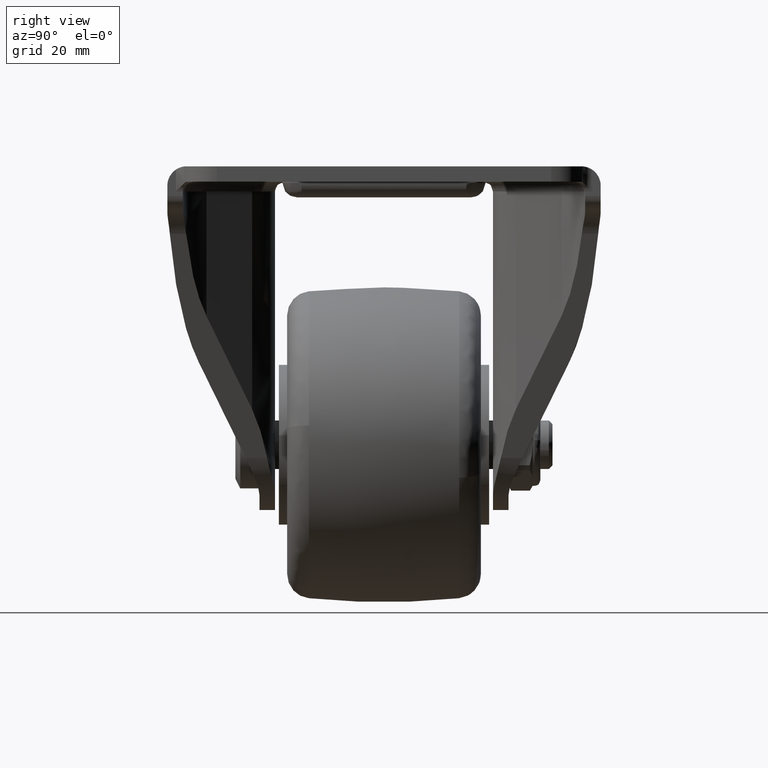
[diagram: clean part render]
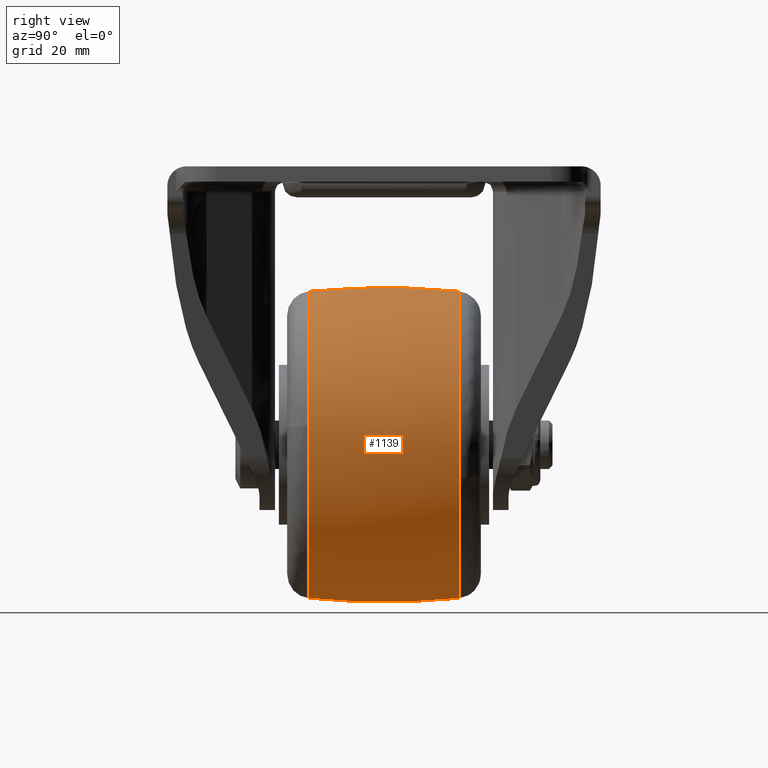
[diagram: same view with one face highlighted and labeled with its STEP entity id]
A machine part, right view. The second image highlights one B-rep face of the part: STEP entity #1139.
In plain terms, the highlighted face is a freeform B-spline surface patch.
Its self-contained STEP definition (entity closure, byte-faithful):
#650=CARTESIAN_POINT('',(30.956984872596859,15.517244432092880,-64.300898144533846));
#651=VERTEX_POINT('',#650);
#665=CARTESIAN_POINT('',(0.0,15.517246504561800,-89.195224658554778));
#666=VERTEX_POINT('',#665);
#667=CARTESIAN_POINT('',(30.956984872596855,15.517244432092877,-64.300898144533846));
#668=CARTESIAN_POINT('',(25.487985059811013,15.517246369816304,-89.195224380133993));
#669=CARTESIAN_POINT('',(0.0,15.517246504561800,-89.195224658554778));
#677=(BOUNDED_CURVE()B_SPLINE_CURVE(2,(#667,#668,#669),.UNSPECIFIED.,.F.,.U.)B_SPLINE_CURVE_WITH_KNOTS((3,3),(0.286726881241410,0.500000000000000),.UNSPECIFIED.)CURVE()GEOMETRIC_REPRESENTATION_ITEM()RATIONAL_B_SPLINE_CURVE((0.926585902267343,0.750134999041652,1.0))REPRESENTATION_ITEM(''));
#678=EDGE_CURVE('',#651,#666,#677,.T.);
#680=CARTESIAN_POINT('',(-31.483239876195700,15.517261947292360,-61.159613536615502));
#681=VERTEX_POINT('',#680);
#695=CARTESIAN_POINT('',(-31.535192183478511,15.517259539841730,-54.319013286352742));
#696=VERTEX_POINT('',#695);
#697=CARTESIAN_POINT('',(-31.483239876195697,15.517261947292365,-61.159613536615495));
#698=CARTESIAN_POINT('',(-31.695222454987491,15.517261361182086,-59.335946286208809));
#699=CARTESIAN_POINT('',(-31.695221846348488,15.517260711126980,-57.499999907074830));
#700=CARTESIAN_POINT('',(-31.695221317745776,15.517260146554399,-55.905481248658596));
#701=CARTESIAN_POINT('',(-31.535192183478518,15.517259539841730,-54.319013286352742));
#709=(BOUNDED_CURVE()B_SPLINE_CURVE(2,(#697,#698,#699,#700,#701),.UNSPECIFIED.,.F.,.U.)B_SPLINE_CURVE_WITH_KNOTS((3,2,3),(0.730000273836047,0.750000000000000,0.767423438940605),.UNSPECIFIED.)CURVE()GEOMETRIC_REPRESENTATION_ITEM()RATIONAL_B_SPLINE_CURVE((0.956886657167089,0.976568863313808,1.0,0.979587171543546,0.962019636448820))REPRESENTATION_ITEM(''));
#710=EDGE_CURVE('',#681,#696,#709,.T.);
#805=CARTESIAN_POINT('',(0.0,15.517241913492249,-25.804774863944999));
#806=VERTEX_POINT('',#805);
#807=CARTESIAN_POINT('',(-31.535192183478518,15.517259539841730,-54.319013286352742));
#808=CARTESIAN_POINT('',(-28.658934756222820,15.517249848880379,-25.804774892732791));
#809=CARTESIAN_POINT('',(0.0,15.517241913492249,-25.804774863944999));
#817=(BOUNDED_CURVE()B_SPLINE_CURVE(2,(#807,#808,#809),.UNSPECIFIED.,.F.,.U.)B_SPLINE_CURVE_WITH_KNOTS((3,3),(0.767423438940605,1.0),.UNSPECIFIED.)CURVE()GEOMETRIC_REPRESENTATION_ITEM()RATIONAL_B_SPLINE_CURVE((0.962019636448820,0.727519609643002,1.0))REPRESENTATION_ITEM(''));
#818=EDGE_CURVE('',#696,#806,#817,.T.);
#820=CARTESIAN_POINT('',(0.0,15.517241913492249,-25.804774863944999));
#821=CARTESIAN_POINT('',(31.695224116910691,15.517241805135509,-25.804774640050560));
#822=CARTESIAN_POINT('',(31.695222849568221,15.517243965924781,-57.499999258934693));
#823=CARTESIAN_POINT('',(31.695222711998163,15.517244200478505,-60.940516558977727));
#824=CARTESIAN_POINT('',(30.956984872596855,15.517244432092877,-64.300898144533846));
#832=(BOUNDED_CURVE()B_SPLINE_CURVE(2,(#820,#821,#822,#823,#824),.UNSPECIFIED.,.F.,.U.)B_SPLINE_CURVE_WITH_KNOTS((3,2,3),(0.0,0.250000000000000,0.286726881241410),.UNSPECIFIED.)CURVE()GEOMETRIC_REPRESENTATION_ITEM()RATIONAL_B_SPLINE_CURVE((1.0,0.707106781186547,1.0,0.956971782144896,0.926585902267343))REPRESENTATION_ITEM(''));
#833=EDGE_CURVE('',#806,#651,#832,.T.);
#874=CARTESIAN_POINT('',(11.223453774361341,-15.517241533237550,-87.141543519264729));
#875=VERTEX_POINT('',#874);
#876=CARTESIAN_POINT('',(0.0,-15.517241598101799,-89.195221404938138));
#877=VERTEX_POINT('',#876);
#878=CARTESIAN_POINT('',(11.223453774361339,-15.517241533237545,-87.141543519264729));
#879=CARTESIAN_POINT('',(5.799618813266907,-15.517241598101799,-89.195221404938138));
#880=CARTESIAN_POINT('',(0.0,-15.517241598101799,-89.195221404938138));
#888=(BOUNDED_CURVE()B_SPLINE_CURVE(2,(#878,#879,#880),.UNSPECIFIED.,.F.,.U.)B_SPLINE_CURVE_WITH_KNOTS((3,3),(0.439864364277837,0.500000000000000),.UNSPECIFIED.)CURVE()GEOMETRIC_REPRESENTATION_ITEM()RATIONAL_B_SPLINE_CURVE((0.892987462786401,0.929546720351770,1.0))REPRESENTATION_ITEM(''));
#889=EDGE_CURVE('',#875,#877,#888,.T.);
#953=CARTESIAN_POINT('',(31.445293854841172,-15.517241488141851,-53.527535572226370));
#954=VERTEX_POINT('',#953);
#968=CARTESIAN_POINT('',(0.0,-15.517241397116400,-25.804779828797962));
#969=VERTEX_POINT('',#968);
#970=CARTESIAN_POINT('',(0.0,-15.517241397116400,-25.804779828797962));
#971=CARTESIAN_POINT('',(27.943094916231633,-15.517241397116400,-25.804779828797951));
#972=CARTESIAN_POINT('',(31.445293854841172,-15.517241488141856,-53.527535572226370));
#980=(BOUNDED_CURVE()B_SPLINE_CURVE(2,(#970,#971,#972),.UNSPECIFIED.,.F.,.U.)B_SPLINE_CURVE_WITH_KNOTS((3,3),(0.0,0.228321253634093),.UNSPECIFIED.)CURVE()GEOMETRIC_REPRESENTATION_ITEM()RATIONAL_B_SPLINE_CURVE((1.0,0.732505012398351,0.953608352077059))REPRESENTATION_ITEM(''));
#981=EDGE_CURVE('',#969,#954,#980,.T.);
#983=CARTESIAN_POINT('',(-31.483237938265621,-15.517256669648759,-61.159613230009029));
#984=VERTEX_POINT('',#983);
#985=CARTESIAN_POINT('',(-31.483237938265628,-15.517256669648766,-61.159613230009029));
#986=CARTESIAN_POINT('',(-31.695221062251296,-15.517256275756186,-59.335946228994970));
#987=CARTESIAN_POINT('',(-31.695221035761062,-15.517255833425340,-57.500000100496379));
#988=CARTESIAN_POINT('',(-31.695220578441766,-15.517248197159157,-25.804779876135512));
#989=CARTESIAN_POINT('',(0.0,-15.517241397116400,-25.804779828797962));
#997=(BOUNDED_CURVE()B_SPLINE_CURVE(2,(#985,#986,#987,#988,#989),.UNSPECIFIED.,.F.,.U.)B_SPLINE_CURVE_WITH_KNOTS((3,2,3),(0.730000274267257,0.750000000000000,1.0),.UNSPECIFIED.)CURVE()GEOMETRIC_REPRESENTATION_ITEM()RATIONAL_B_SPLINE_CURVE((0.956886658015817,0.976568863819002,1.0,0.707106781186548,1.0))REPRESENTATION_ITEM(''));
#998=EDGE_CURVE('',#984,#969,#997,.T.);
#1033=CARTESIAN_POINT('',(31.445293854841168,-15.517241488141854,-53.527535572226370));
#1034=CARTESIAN_POINT('',(31.695220171202056,-15.517241491286631,-55.505906078710318));
#1035=CARTESIAN_POINT('',(31.695220171202049,-15.517241497609101,-57.500000616868050));
#1036=CARTESIAN_POINT('',(31.695220171202052,-15.517241567013830,-79.390128023991522));
#1037=CARTESIAN_POINT('',(11.223453774361330,-15.517241533237543,-87.141543519264729));
#1045=(BOUNDED_CURVE()B_SPLINE_CURVE(2,(#1033,#1034,#1035,#1036,#1037),.UNSPECIFIED.,.F.,.U.)B_SPLINE_CURVE_WITH_KNOTS((3,2,3),(0.228321253634093,0.250000000000000,0.439864364277838),.UNSPECIFIED.)CURVE()GEOMETRIC_REPRESENTATION_ITEM()RATIONAL_B_SPLINE_CURVE((0.953608352077059,0.974601768788196,1.0,0.777560060834777,0.892987462786402))REPRESENTATION_ITEM(''));
#1046=EDGE_CURVE('',#954,#875,#1045,.T.);
#1068=CARTESIAN_POINT('',(-31.316080830594672,17.057838752804287,-61.140233557958126));
#1069=CARTESIAN_POINT('',(-33.255486134399156,0.000006253118712,-61.365673270787511));
#1070=CARTESIAN_POINT('',(-31.316082234113768,-17.057826408297327,-61.140233721105538));
#1071=CARTESIAN_POINT('',(-31.526944332504282,17.057838752804269,-59.326223999261714));
#1072=CARTESIAN_POINT('',(-33.479408415796364,0.000006253118708,-59.439322075910027));
#1073=CARTESIAN_POINT('',(-31.526945745473832,-17.057826408297334,-59.326224081109125));
#1074=CARTESIAN_POINT('',(-31.526944332504272,17.057838752804280,-57.500000000000007));
#1075=CARTESIAN_POINT('',(-33.479408415796350,0.000006253118708,-57.500000000000000));
#1076=CARTESIAN_POINT('',(-31.526945745473824,-17.057826408297331,-57.499999999999986));
#1077=CARTESIAN_POINT('',(-31.526944332504289,17.057838752804265,-25.973055667495718));
#1078=CARTESIAN_POINT('',(-33.479408415796357,0.000006253118704,-24.020591584203633));
#1079=CARTESIAN_POINT('',(-31.526945745473824,-17.057826408297327,-25.973054254526165));
#1080=CARTESIAN_POINT('',(0.0,17.057838752804280,-25.973055667495728));
#1081=CARTESIAN_POINT('',(0.0,0.000006253118708,-24.020591584203654));
#1082=CARTESIAN_POINT('',(0.0,-17.057826408297331,-25.973054254526183));
#1083=CARTESIAN_POINT('',(31.526944332504272,17.057838752804265,-25.973055667495707));
#1084=CARTESIAN_POINT('',(33.479408415796357,0.000006253118704,-24.020591584203633));
#1085=CARTESIAN_POINT('',(31.526945745473824,-17.057826408297327,-25.973054254526165));
#1086=CARTESIAN_POINT('',(31.526944332504272,17.057838752804280,-57.500000000000007));
#1087=CARTESIAN_POINT('',(33.479408415796350,0.000006253118708,-57.500000000000000));
#1088=CARTESIAN_POINT('',(31.526945745473824,-17.057826408297331,-57.499999999999986));
#1089=CARTESIAN_POINT('',(31.526944332504289,17.057838752804265,-89.026944332504272));
#1090=CARTESIAN_POINT('',(33.479408415796357,0.000006253118704,-90.979408415796343));
#1091=CARTESIAN_POINT('',(31.526945745473824,-17.057826408297327,-89.026945745473824));
#1092=CARTESIAN_POINT('',(0.0,17.057838752804280,-89.026944332504272));
#1093=CARTESIAN_POINT('',(0.0,0.000006253118708,-90.979408415796357));
#1094=CARTESIAN_POINT('',(0.0,-17.057826408297331,-89.026945745473824));
#1102=(BOUNDED_SURFACE()B_SPLINE_SURFACE(2,2,((#1068,#1071,#1074,#1077,#1080,#1083,#1086,#1089,#1092),(#1069,#1072,#1075,#1078,#1081,#1084,#1087,#1090,#1093),(#1070,#1073,#1076,#1079,#1082,#1085,#1088,#1091,#1094)),.UNSPECIFIED.,.F.,.F.,.U.)B_SPLINE_SURFACE_WITH_KNOTS((3,3),(3,2,2,2,3),(0.0,34.226679963559882),(0.0,4.307820149998674,58.155583258500862,112.003346367003100,165.851109475505210),.UNSPECIFIED.)GEOMETRIC_REPRESENTATION_ITEM()RATIONAL_B_SPLINE_SURFACE(((0.855999914603439,0.873607182817957,0.894568215573752,0.632555251466149,0.894568215573752,0.632555251466149,0.894568215573752,0.632555251466149,0.894568215573752),(0.850447012837298,0.867940062079246,0.888765119873100,0.628451843144344,0.888765119873100,0.628451843144344,0.888765119873100,0.628451843144344,0.888765119873100),(0.855999910558647,0.873607178689967,0.894568211346716,0.632555248477184,0.894568211346716,0.632555248477184,0.894568211346716,0.632555248477184,0.894568211346716)))REPRESENTATION_ITEM('')SURFACE());
#1103=ORIENTED_EDGE('',*,*,#818,.F.);
#1104=ORIENTED_EDGE('',*,*,#710,.F.);
#1105=CARTESIAN_POINT('',(-31.483239876195700,15.517261947292361,-61.159613536615488));
#1106=CARTESIAN_POINT('',(-33.086339032080360,0.000002665970360,-61.345960460324577));
#1107=CARTESIAN_POINT('',(-31.483237938265624,-15.517256669648768,-61.159613230009029));
#1115=(BOUNDED_CURVE()B_SPLINE_CURVE(2,(#1105,#1106,#1107),.UNSPECIFIED.,.F.,.U.)B_SPLINE_CURVE_WITH_KNOTS((3,3),(0.425603817134385,0.574396158670454),.UNSPECIFIED.)CURVE()GEOMETRIC_REPRESENTATION_ITEM()RATIONAL_B_SPLINE_CURVE((0.855518460504172,0.850928451015554,0.855518459011407))REPRESENTATION_ITEM(''));
#1116=EDGE_CURVE('',#681,#984,#1115,.T.);
#1117=ORIENTED_EDGE('',*,*,#1116,.T.);
#1118=ORIENTED_EDGE('',*,*,#998,.T.);
#1119=ORIENTED_EDGE('',*,*,#981,.T.);
#1120=ORIENTED_EDGE('',*,*,#1046,.T.);
#1121=ORIENTED_EDGE('',*,*,#889,.T.);
#1122=CARTESIAN_POINT('',(0.0,15.517246504561795,-89.195224658554778));
#1123=CARTESIAN_POINT('',(0.0,0.000002477672677,-90.809114288185214));
#1124=CARTESIAN_POINT('',(0.0,-15.517241598101799,-89.195221404938138));
#1132=(BOUNDED_CURVE()B_SPLINE_CURVE(2,(#1122,#1123,#1124),.UNSPECIFIED.,.F.,.U.)B_SPLINE_CURVE_WITH_KNOTS((3,3),(0.425603891572650,0.574396086643665),.UNSPECIFIED.)CURVE()GEOMETRIC_REPRESENTATION_ITEM()RATIONAL_B_SPLINE_CURVE((0.894065071744625,0.889268262290978,0.894065070340086))REPRESENTATION_ITEM(''));
#1133=EDGE_CURVE('',#666,#877,#1132,.T.);
#1134=ORIENTED_EDGE('',*,*,#1133,.F.);
#1135=ORIENTED_EDGE('',*,*,#678,.F.);
#1136=ORIENTED_EDGE('',*,*,#833,.F.);
#1137=EDGE_LOOP('',(#1103,#1104,#1117,#1118,#1119,#1120,#1121,#1134,#1135,#1136));
#1138=FACE_OUTER_BOUND('',#1137,.T.);
#1139=ADVANCED_FACE('',(#1138),#1102,.T.);